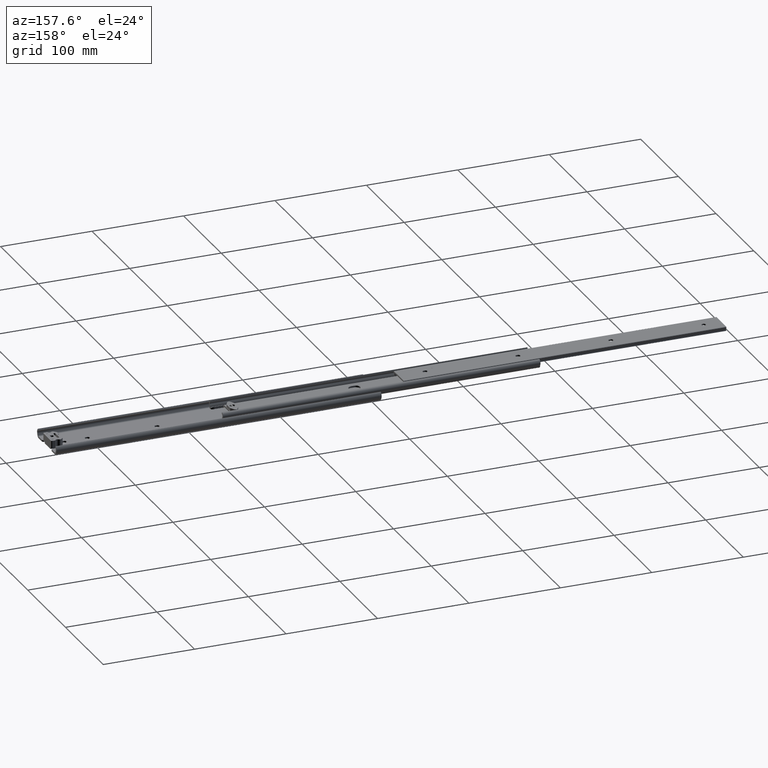
[diagram: clean part render]
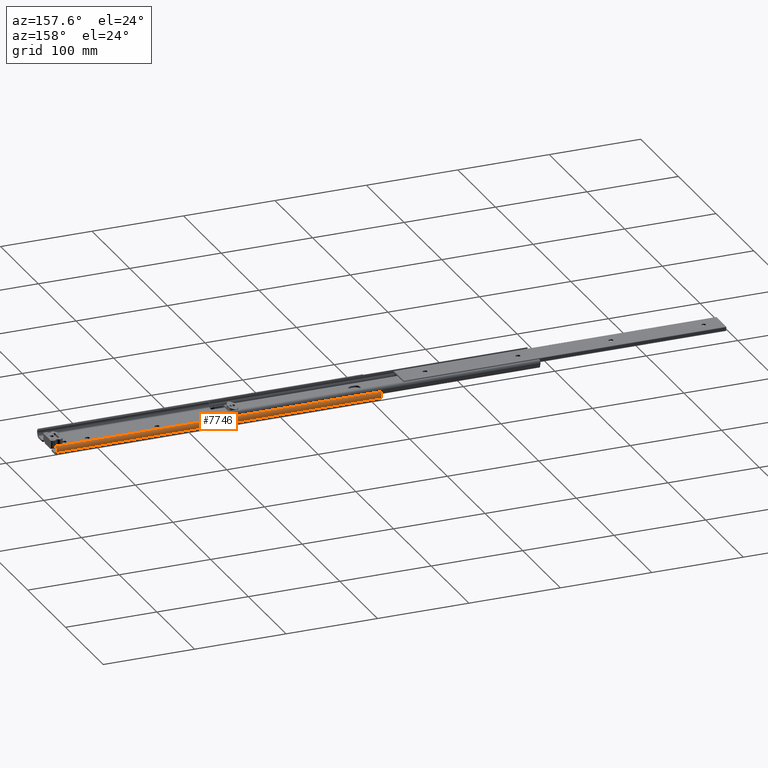
[diagram: same view with one face highlighted and labeled with its STEP entity id]
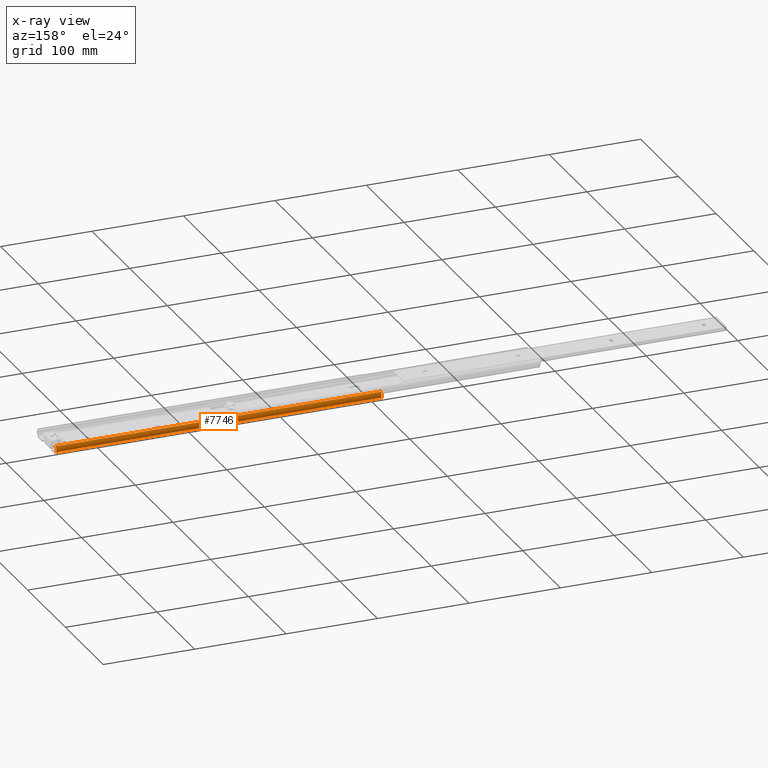
[diagram: x-ray of the same camera — body ghosted, the highlighted face saturated]
A machine part, auxiliary view. The second image highlights one B-rep face of the part: STEP entity #7746.
The next image is the same camera in x-ray: the body ghosted, the highlighted face saturated — about 0% of this face is hidden behind the body in this view.
In plain terms, the highlighted cylindrical surface (edge-blend (fillet) strip) has radius 4.75 mm, axis along (-1, -0, -0).
Its self-contained STEP definition (entity closure, byte-faithful):
#161 = DIRECTION ( 'NONE',  ( -1.000000000000000000, -0.0000000000000000000, -0.0000000000000000000 ) ) ;
#337 = ORIENTED_EDGE ( 'NONE', *, *, #1111, .F. ) ;
#510 = DIRECTION ( 'NONE',  ( 0.0000000000000000000, 0.0000000000000000000, -1.000000000000000000 ) ) ;
#592 = LINE ( 'NONE', #5748, #7026 ) ;
#694 = ORIENTED_EDGE ( 'NONE', *, *, #5891, .F. ) ;
#825 = DIRECTION ( 'NONE',  ( 0.0000000000000000000, 0.0000000000000000000, 1.000000000000000000 ) ) ;
#1111 = EDGE_CURVE ( 'NONE', #7679, #7555, #4930, .T. ) ;
#1214 = CIRCLE ( 'NONE', #2609, 4.749999999999913800 ) ;
#1338 = LINE ( 'NONE', #3940, #7585 ) ;
#1406 = EDGE_CURVE ( 'NONE', #4396, #6504, #1214, .T. ) ;
#1600 = CYLINDRICAL_SURFACE ( 'NONE', #5906, 4.749999999999913800 ) ;
#2451 = DIRECTION ( 'NONE',  ( 1.000000000000000000, 0.0000000000000000000, 0.0000000000000000000 ) ) ;
#2609 = AXIS2_PLACEMENT_3D ( 'NONE', #6125, #3808, #510 ) ;
#3146 = AXIS2_PLACEMENT_3D ( 'NONE', #6073, #2451, #6675 ) ;
#3175 = CARTESIAN_POINT ( 'NONE',  ( 0.0000000000000000000, 25.38040352776301500, 3.863001106676766200 ) ) ;
#3293 = ORIENTED_EDGE ( 'NONE', *, *, #5211, .T. ) ;
#3808 = DIRECTION ( 'NONE',  ( 1.000000000000000000, 0.0000000000000000000, 0.0000000000000000000 ) ) ;
#3940 = CARTESIAN_POINT ( 'NONE',  ( 355.6000000000000200, 23.44899979584744900, 9.769999999999999600 ) ) ;
#3941 = DIRECTION ( 'NONE',  ( -1.000000000000000000, -0.0000000000000000000, -0.0000000000000000000 ) ) ;
#4281 = EDGE_LOOP ( 'NONE', ( #5172, #694, #337, #3293 ) ) ;
#4396 = VERTEX_POINT ( 'NONE', #3175 ) ;
#4930 = CIRCLE ( 'NONE', #3146, 4.749999999999913800 ) ;
#5083 = DIRECTION ( 'NONE',  ( -1.000000000000000000, -0.0000000000000000000, -0.0000000000000000000 ) ) ;
#5172 = ORIENTED_EDGE ( 'NONE', *, *, #1406, .T. ) ;
#5211 = EDGE_CURVE ( 'NONE', #7679, #4396, #592, .T. ) ;
#5748 = CARTESIAN_POINT ( 'NONE',  ( 355.6000000000000200, 25.38040352776301500, 3.863001106676766200 ) ) ;
#5891 = EDGE_CURVE ( 'NONE', #7555, #6504, #1338, .T. ) ;
#5906 = AXIS2_PLACEMENT_3D ( 'NONE', #6871, #5083, #825 ) ;
#6073 = CARTESIAN_POINT ( 'NONE',  ( 355.6000000000000200, 21.00000000001258400, 5.700000000000000200 ) ) ;
#6125 = CARTESIAN_POINT ( 'NONE',  ( 0.0000000000000000000, 21.00000000001258400, 5.700000000000000200 ) ) ;
#6382 = CARTESIAN_POINT ( 'NONE',  ( 0.0000000000000000000, 23.44899979584744900, 9.769999999999999600 ) ) ;
#6430 = FACE_OUTER_BOUND ( 'NONE', #4281, .T. ) ;
#6504 = VERTEX_POINT ( 'NONE', #6382 ) ;
#6621 = CARTESIAN_POINT ( 'NONE',  ( 355.6000000000000200, 23.44899979584744900, 9.769999999999999600 ) ) ;
#6675 = DIRECTION ( 'NONE',  ( 0.0000000000000000000, 0.0000000000000000000, -1.000000000000000000 ) ) ;
#6871 = CARTESIAN_POINT ( 'NONE',  ( 355.6000000000000200, 21.00000000001258400, 5.700000000000000200 ) ) ;
#7026 = VECTOR ( 'NONE', #3941, 1000.000000000000000 ) ;
#7405 = CARTESIAN_POINT ( 'NONE',  ( 355.6000000000000200, 25.38040352776301500, 3.863001106676766200 ) ) ;
#7555 = VERTEX_POINT ( 'NONE', #6621 ) ;
#7585 = VECTOR ( 'NONE', #161, 1000.000000000000000 ) ;
#7679 = VERTEX_POINT ( 'NONE', #7405 ) ;
#7746 = ADVANCED_FACE ( 'NONE', ( #6430 ), #1600, .T. ) ;